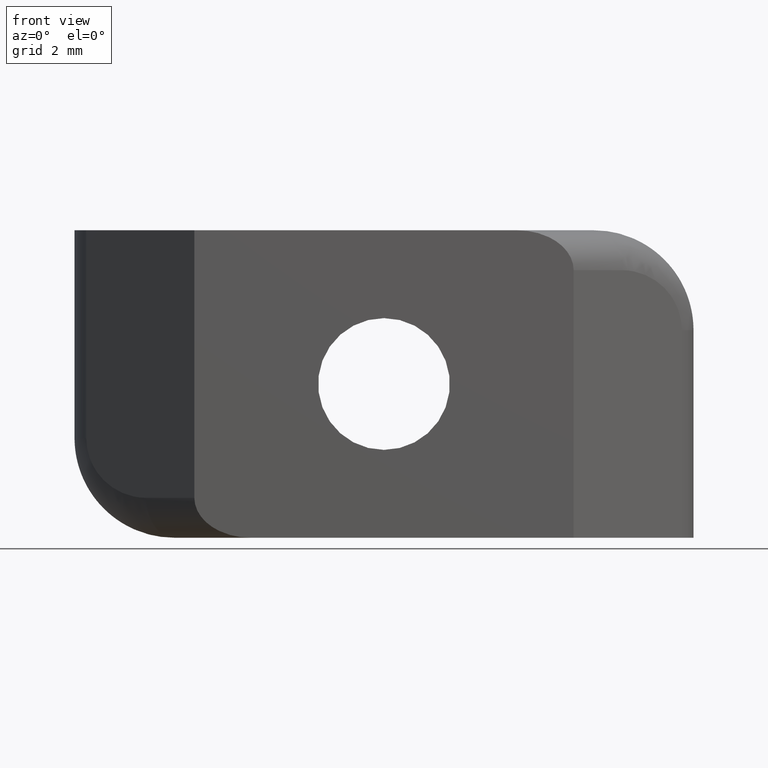
[diagram: clean part render]
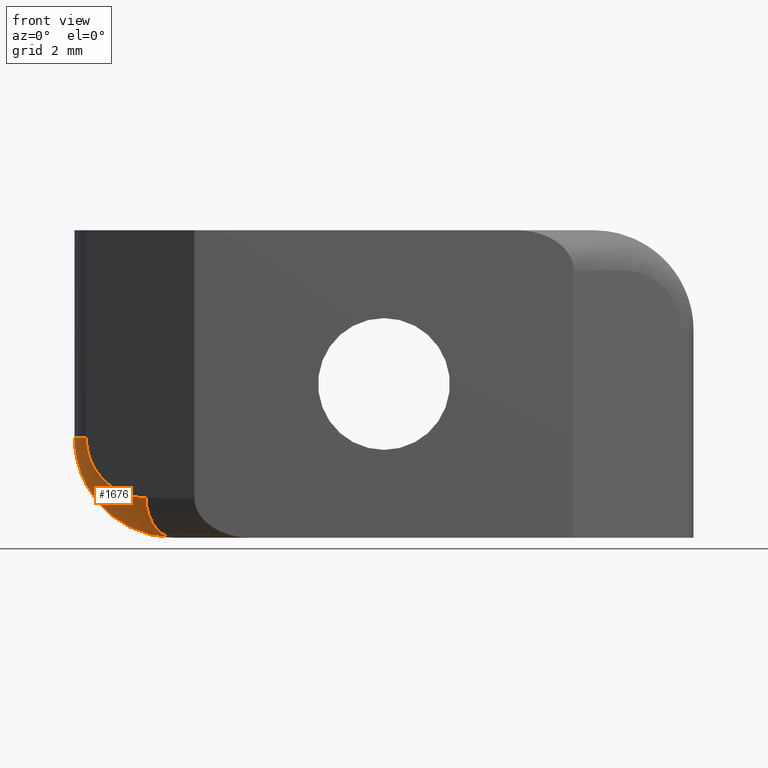
[diagram: same view with one face highlighted and labeled with its STEP entity id]
A machine part, front view. The second image highlights one B-rep face of the part: STEP entity #1676.
In plain terms, the highlighted face is a freeform B-spline surface patch.
Its self-contained STEP definition (entity closure, byte-faithful):
#16=(
BOUNDED_SURFACE()
B_SPLINE_SURFACE(3,2,((#2879,#2880,#2881),(#2882,#2883,#2884),(#2885,#2886,
#2887),(#2888,#2889,#2890),(#2891,#2892,#2893),(#2894,#2895,#2896),(#2897,
#2898,#2899),(#2900,#2901,#2902),(#2903,#2904,#2905),(#2906,#2907,#2908)),
 .UNSPECIFIED.,.F.,.F.,.F.)
B_SPLINE_SURFACE_WITH_KNOTS((4,2,2,2,4),(3,3),(1.5707963267949,1.96349540849362,
2.35619449019234,2.74889357189107,3.14159265358979),(0.,1.),
 .UNSPECIFIED.)
GEOMETRIC_REPRESENTATION_ITEM()
RATIONAL_B_SPLINE_SURFACE(((1.,0.707106781186547,1.),(1.,0.739849752031216,
1.),(1.,0.770234554071442,1.),(1.,0.823878396803181,1.),(1.,0.847131660795783,
1.),(1.,0.884919146773095,1.),(1.,0.899458171431015,1.),(1.,0.91893754041951,
1.),(1.,0.923888611050579,1.),(1.,0.923879532511287,1.)))
REPRESENTATION_ITEM('')
SURFACE()
);
#18=(
BOUNDED_CURVE()
B_SPLINE_CURVE(3,(#2557,#2558,#2559,#2560,#2561,#2562,#2563,#2564,#2565,
#2566),.UNSPECIFIED.,.F.,.F.)
B_SPLINE_CURVE_WITH_KNOTS((4,2,2,2,4),(1.5707963267949,1.96349540849362,
2.35619449019234,2.74889357189107,3.14159265358979),.UNSPECIFIED.)
CURVE()
GEOMETRIC_REPRESENTATION_ITEM()
RATIONAL_B_SPLINE_CURVE((1.,1.,1.,1.,1.,1.,1.,1.,1.,1.))
REPRESENTATION_ITEM('')
);
#71=B_SPLINE_CURVE_WITH_KNOTS('',3,(#2350,#2351,#2352,#2353,#2354,#2355,
#2356,#2357,#2358,#2359,#2360,#2361,#2362),.UNSPECIFIED.,.F.,.F.,(4,3,3,
3,4),(3.14159265358979,3.53429173528852,3.92699081698724,4.31968989868597,
4.71238898038469),.UNSPECIFIED.);
#230=FACE_OUTER_BOUND('',#317,.T.);
#317=EDGE_LOOP('',(#1576,#1577,#1578,#1579));
#685=CIRCLE('',#1842,1.);
#686=CIRCLE('',#1843,1.);
#699=VERTEX_POINT('',#2347);
#700=VERTEX_POINT('',#2349);
#734=VERTEX_POINT('',#2447);
#763=VERTEX_POINT('',#2510);
#862=EDGE_CURVE('',#699,#700,#71,.T.);
#950=EDGE_CURVE('',#763,#734,#18,.T.);
#1092=EDGE_CURVE('',#763,#700,#685,.T.);
#1093=EDGE_CURVE('',#734,#699,#686,.T.);
#1576=ORIENTED_EDGE('',*,*,#1092,.T.);
#1577=ORIENTED_EDGE('',*,*,#862,.F.);
#1578=ORIENTED_EDGE('',*,*,#1093,.F.);
#1579=ORIENTED_EDGE('',*,*,#950,.F.);
#1676=ADVANCED_FACE('',(#230),#16,.T.);
#1842=AXIS2_PLACEMENT_3D('',#2878,#2312,#2313);
#1843=AXIS2_PLACEMENT_3D('',#2909,#2314,#2315);
#2312=DIRECTION('center_axis',(-0.707106781186548,0.707106781186548,0.));
#2313=DIRECTION('ref_axis',(-0.707106781186548,-0.707106781186548,0.));
#2314=DIRECTION('center_axis',(0.,0.,1.));
#2315=DIRECTION('ref_axis',(1.,0.,0.));
#2347=CARTESIAN_POINT('',(-7.45710678118655,2.70710678118655,2.5));
#2349=CARTESIAN_POINT('',(-5.95710678118655,1.20710678118655,1.));
#2350=CARTESIAN_POINT('Ctrl Pts',(-7.45710678118655,2.70710678118655,2.5));
#2351=CARTESIAN_POINT('Ctrl Pts',(-7.45710678117207,2.70710678117207,2.30361506666605));
#2352=CARTESIAN_POINT('Ctrl Pts',(-7.41806579133411,2.66806579133411,2.10737816174027));
#2353=CARTESIAN_POINT('Ctrl Pts',(-7.34292607995348,2.59292607995348,1.92597485145236));
#2354=CARTESIAN_POINT('Ctrl Pts',(-7.26778636857285,2.51778636857285,1.74457154116446));
#2355=CARTESIAN_POINT('Ctrl Pts',(-7.15660703792751,2.40660703792751,1.57817991318132));
#2356=CARTESIAN_POINT('Ctrl Pts',(-7.01776695296637,2.26776695296637,1.43933982822018));
#2357=CARTESIAN_POINT('Ctrl Pts',(-6.87892686800523,2.12892686800523,1.30049974325904));
#2358=CARTESIAN_POINT('Ctrl Pts',(-6.71253524449344,1.96253524449344,1.18932041446578));
#2359=CARTESIAN_POINT('Ctrl Pts',(-6.53113192973418,1.78113192973418,1.11418070123307));
#2360=CARTESIAN_POINT('Ctrl Pts',(-6.34972861497493,1.59972861497493,1.03904098800036));
#2361=CARTESIAN_POINT('Ctrl Pts',(-6.15349171787875,1.40349171787875,1.00000000000512));
#2362=CARTESIAN_POINT('Ctrl Pts',(-5.95710678118655,1.20710678118655,1.));
#2447=CARTESIAN_POINT('',(-7.75,3.41421356237309,2.5));
#2510=CARTESIAN_POINT('',(-5.25,1.9142135623731,0.));
#2557=CARTESIAN_POINT('Ctrl Pts',(-5.25,1.9142135623731,4.33680868994202E-16));
#2558=CARTESIAN_POINT('Ctrl Pts',(-5.57730822782031,2.1105984990654,4.33680868994202E-16));
#2559=CARTESIAN_POINT('Ctrl Pts',(-5.90436972298055,2.3068353961615,0.0650683133338861));
#2560=CARTESIAN_POINT('Ctrl Pts',(-6.5090474388449,2.66964202567996,0.315534024109681));
#2561=CARTESIAN_POINT('Ctrl Pts',(-6.78636681136452,2.83603364919173,0.500832905431782));
#2562=CARTESIAN_POINT('Ctrl Pts',(-7.24916709456822,3.11371381911411,0.963633188635484));
#2563=CARTESIAN_POINT('Ctrl Pts',(-7.43446597897718,3.22489314975939,1.24095256860744));
#2564=CARTESIAN_POINT('Ctrl Pts',(-7.68493168357925,3.37517257252065,1.84563026956711));
#2565=CARTESIAN_POINT('Ctrl Pts',(-7.75,3.4142135623587,2.17269177777671));
#2566=CARTESIAN_POINT('Ctrl Pts',(-7.75,3.41421356237309,2.5));
#2878=CARTESIAN_POINT('Origin',(-5.25,1.9142135623731,1.));
#2879=CARTESIAN_POINT('Ctrl Pts',(-5.95710678118655,1.20710678118655,1.));
#2880=CARTESIAN_POINT('Ctrl Pts',(-5.95710678118655,1.20710678118655,2.16840434497101E-16));
#2881=CARTESIAN_POINT('Ctrl Pts',(-5.25,1.9142135623731,4.33680868994202E-16));
#2882=CARTESIAN_POINT('Ctrl Pts',(-6.15349171787875,1.40349171787875,1.00000000000512));
#2883=CARTESIAN_POINT('Ctrl Pts',(-6.20722077648279,1.45722077648267,0.0884286559780539));
#2884=CARTESIAN_POINT('Ctrl Pts',(-5.57730822782031,2.1105984990654,4.33680868994202E-16));
#2885=CARTESIAN_POINT('Ctrl Pts',(-6.34972861497493,1.59972861497493,1.03904098800036));
#2886=CARTESIAN_POINT('Ctrl Pts',(-6.45524434611716,1.70524434611725,0.217863644038253));
#2887=CARTESIAN_POINT('Ctrl Pts',(-5.90436972298055,2.3068353961615,0.0650683133338861));
#2888=CARTESIAN_POINT('Ctrl Pts',(-6.71253524449344,1.96253524449344,1.18932041446578));
#2889=CARTESIAN_POINT('Ctrl Pts',(-6.89345683740248,2.1434568374024,0.545237638459809));
#2890=CARTESIAN_POINT('Ctrl Pts',(-6.5090474388449,2.66964202567996,0.315534024109681));
#2891=CARTESIAN_POINT('Ctrl Pts',(-6.87892686800523,2.12892686800523,1.30049974325904));
#2892=CARTESIAN_POINT('Ctrl Pts',(-7.09050489437764,2.34050489437748,0.741888025252483));
#2893=CARTESIAN_POINT('Ctrl Pts',(-6.78636681136452,2.83603364919173,0.500832905431782));
#2894=CARTESIAN_POINT('Ctrl Pts',(-7.15660703792751,2.40660703792751,1.57817991318132));
#2895=CARTESIAN_POINT('Ctrl Pts',(-7.40947469103179,2.65947469103194,1.18433000322365));
#2896=CARTESIAN_POINT('Ctrl Pts',(-7.24916709456822,3.11371381911411,0.963633188635484));
#2897=CARTESIAN_POINT('Ctrl Pts',(-7.26778636857285,2.51778636857285,1.74457154116446));
#2898=CARTESIAN_POINT('Ctrl Pts',(-7.53711795705604,2.78711795705604,1.43218446890232));
#2899=CARTESIAN_POINT('Ctrl Pts',(-7.43446597897718,3.22489314975939,1.24095256860744));
#2900=CARTESIAN_POINT('Ctrl Pts',(-7.41806579133411,2.66806579133411,2.10737816174027));
#2901=CARTESIAN_POINT('Ctrl Pts',(-7.70574344994614,2.95574344994614,1.95126659709939));
#2902=CARTESIAN_POINT('Ctrl Pts',(-7.68493168357925,3.37517257252065,1.84563026956711));
#2903=CARTESIAN_POINT('Ctrl Pts',(-7.45710678117207,2.70710678117207,2.30361506666605));
#2904=CARTESIAN_POINT('Ctrl Pts',(-7.74999999998757,2.99999999998791,2.22693968584798));
#2905=CARTESIAN_POINT('Ctrl Pts',(-7.75,3.4142135623587,2.17269177777671));
#2906=CARTESIAN_POINT('Ctrl Pts',(-7.45710678118655,2.70710678118655,2.5));
#2907=CARTESIAN_POINT('Ctrl Pts',(-7.75,3.,2.5));
#2908=CARTESIAN_POINT('Ctrl Pts',(-7.75,3.41421356237309,2.5));
#2909=CARTESIAN_POINT('Origin',(-6.75,3.41421356237309,2.5));